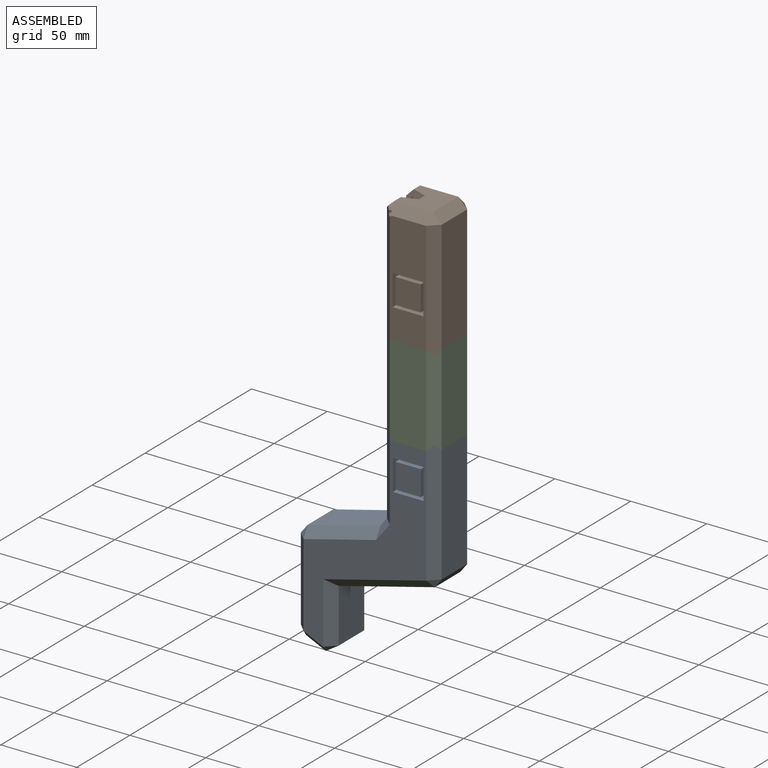
[diagram: assembled view]
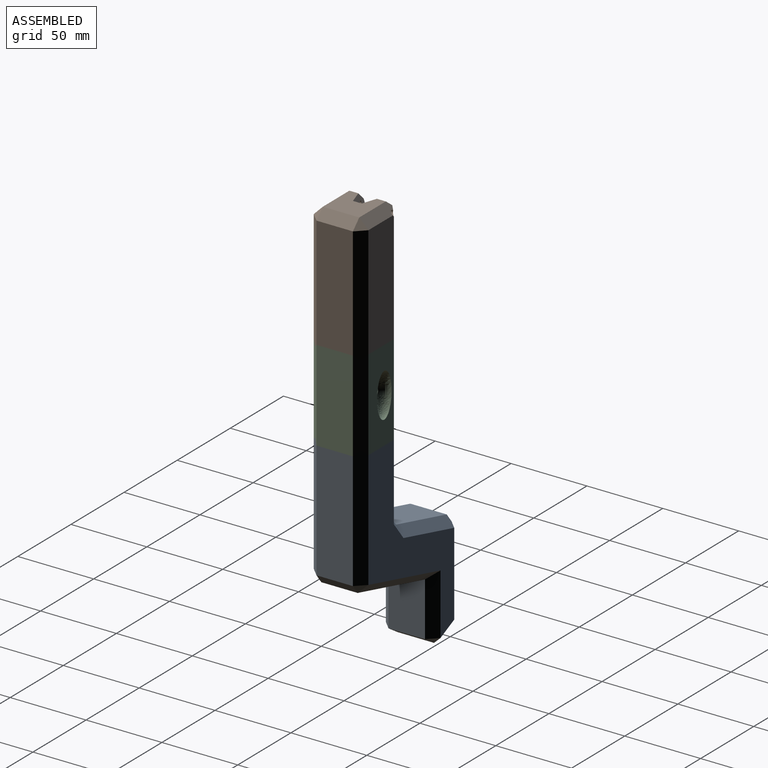
[diagram: assembled view, second angle]
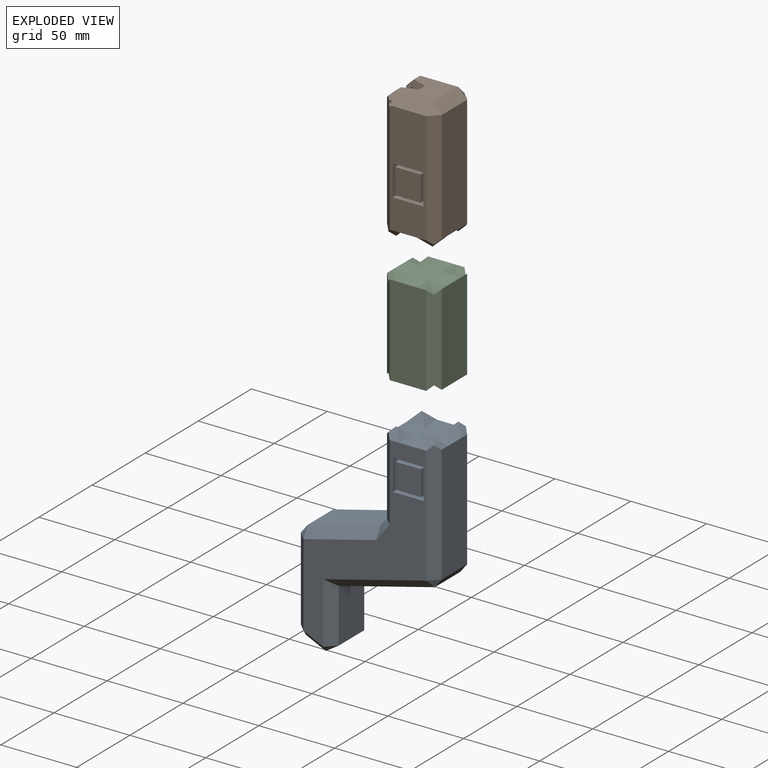
[diagram: exploded view]
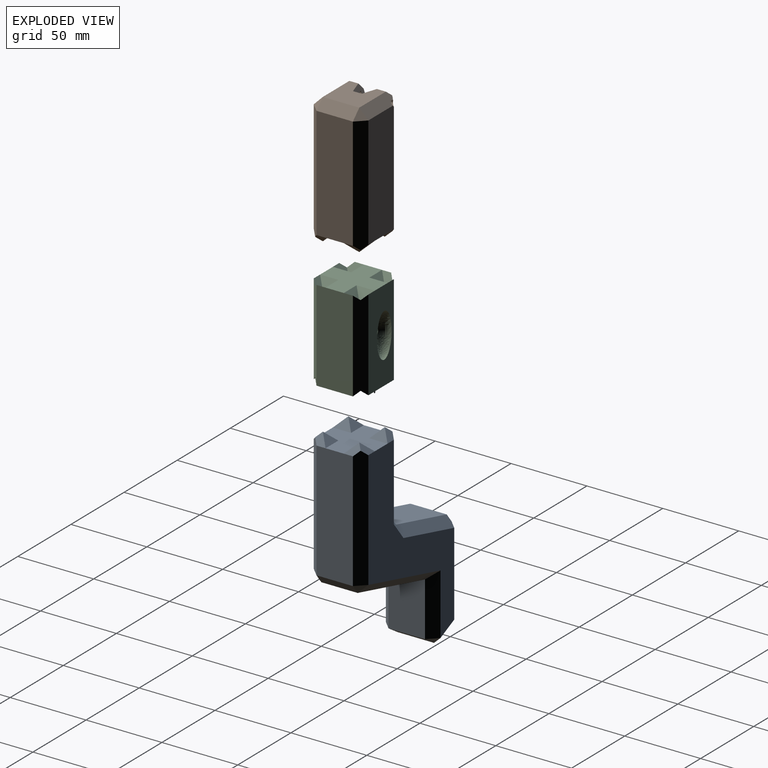
[diagram: exploded view, second angle]
ASSEMBLY  parts=3 mates=2
PART A: 65 faces, bbox 92.8x36x146.3 mm
  f0: plane 134.82x80.83mm, normal (0,-1,0), area 3369.8mm2, adj f1,f10,f11,f12,f17,f30,f35,f36
  f1: plane 36x36mm, normal (0,0,1), area 720mm2, adj f0,f2,f8,f9,f21,f22,f24,f27
  f2: plane 50.34x24mm, normal (-1,0,0), area 1208.1mm2, adj f1,f20,f29,f36,f37,f38
  f3: plane 47.8x24mm, normal (-0.25,0,0.97), area 1183.7mm2, adj f38,f41,f42,f43
  f4: plane 54.65x24mm, normal (-1,0,0), area 1311.5mm2, adj f43,f46,f47,f48
  f5: plane 24x13mm, normal (-0.42,0,-0.91), area 344mm2, adj f48,f51,f52,f53
  f6: plane 35.6x24mm, normal (1,0,0), area 854.4mm2, adj f7,f53,f56,f57
  f7: plane 63.32x24mm, normal (0.25,0,-0.97), area 1568.1mm2, adj f6,f58,f61,f64
  f8: plane 77.29x24mm, normal (1,0,0), area 1854.9mm2, adj f1,f25,f32,f59,f60,f64
  f9: plane 134.82x80.83mm, normal (0,1,0), area 3781.9mm2, adj f1,f23,f26,f37,f40,f42,f47,f52
  f10: plane 30x20.3mm, normal (0,0,-1), area 609mm2, adj f0,f11,f17,f18
  f11: plane 30x20.3mm, normal (1,0,0), area 609mm2, adj f0,f10,f12,f18
  f12: plane 30x20.3mm, normal (0,0,1), area 609mm2, adj f0,f11,f17,f18
  f13: plane 30x16.6mm, normal (0,0,1), area 498mm2, adj f14,f16,f18,f19
  f14: plane 30x16.6mm, normal (1,0,0), area 498mm2, adj f13,f15,f18,f19
  f15: plane 30x16.6mm, normal (0,0,-1), area 498mm2, adj f14,f16,f18,f19
  f16: plane 30x16.6mm, normal (-1,0,0), area 498mm2, adj f13,f15,f18,f19
  f17: plane 30x20.3mm, normal (-1,0,0), area 609mm2, adj f0,f10,f12,f18
  f18: plane 20.3x20.3mm, normal (0,-1,0), area 136.5mm2, adj f10,f11,f12,f13,f14,f15,f16,f17
  f19: plane 16.6x16.6mm, normal (0,-1,0), area 275.6mm2, adj f13,f14,f15,f16
  f20: plane 9x6mm, normal (-0.71,0,0.71), area 38.2mm2, adj f2,f21,f23,f37
  f21: plane 12x6mm, normal (0,-0.71,0.71), area 50.9mm2, adj f1,f20,f22
  f22: plane 12x6mm, normal (0.71,0,0.71), area 50.9mm2, adj f1,f21,f23
  f23: plane 9x6mm, normal (0,0.71,0.71), area 38.2mm2, adj f9,f20,f22,f37
  f24: plane 12x6mm, normal (0,-0.71,0.71), area 50.9mm2, adj f1,f25,f27
  f25: plane 9x6mm, normal (0.71,0,0.71), area 38.2mm2, adj f8,f24,f26,f60
  f26: plane 9x6mm, normal (0,0.71,0.71), area 38.2mm2, adj f9,f25,f27,f60
  f27: plane 12x6mm, normal (-0.71,0,0.71), area 50.9mm2, adj f1,f24,f26
  f28: plane 12x6mm, normal (0,0.71,0.71), area 50.9mm2, adj f1,f29,f31
  f29: plane 9x6mm, normal (-0.71,0,0.71), area 38.2mm2, adj f2,f28,f30,f36
  f30: plane 9x6mm, normal (0,-0.71,0.71), area 38.2mm2, adj f0,f29,f31,f36
  f31: plane 12x6mm, normal (0.71,0,0.71), area 50.9mm2, adj f1,f28,f30
  f32: plane 9x6mm, normal (0.71,0,0.71), area 38.2mm2, adj f8,f33,f35,f59
  f33: plane 12x6mm, normal (0,0.71,0.71), area 50.9mm2, adj f1,f32,f34
  f34: plane 12x6mm, normal (-0.71,0,0.71), area 50.9mm2, adj f1,f33,f35
  f35: plane 9x6mm, normal (0,-0.71,0.71), area 38.2mm2, adj f0,f32,f34,f59
  f36: plane 53.34x6mm, normal (-0.71,-0.71,0), area 439.8mm2, adj f0,f2,f29,f30,f39
  f37: plane 53.34x6mm, normal (-0.71,0.71,0), area 439.8mm2, adj f2,f9,f20,f23,f40
  f38: plane 24x5.81mm, normal (-0.79,0,0.61), area 176.7mm2, adj f2,f3,f39,f40
  f39: plane 11.63x10.52mm, normal (-0.62,-0.62,0.48), area 84.4mm2, adj f0,f36,f38,f41
  f40: plane 11.63x10.52mm, normal (-0.62,0.62,0.48), area 84.4mm2, adj f9,f37,f38,f42
  f41: plane 49.28x17.99mm, normal (-0.17,-0.71,0.69), area 418.5mm2, adj f0,f3,f39,f44
  f42: plane 49.28x17.99mm, normal (-0.17,0.71,0.69), area 418.5mm2, adj f3,f9,f40,f45
  f43: plane 24x5.81mm, normal (-0.79,0,0.61), area 176.7mm2, adj f3,f4,f44,f45
  f44: plane 6x6mm, normal (-0.62,-0.62,0.48), area 28.1mm2, adj f41,f43,f46
  f45: plane 6x6mm, normal (-0.62,0.62,0.48), area 28.1mm2, adj f42,f43,f47
  f46: plane 54.65x6mm, normal (-0.71,-0.71,0), area 463.7mm2, adj f0,f4,f44,f49
  f47: plane 54.65x6mm, normal (-0.71,0.71,0), area 463.7mm2, adj f4,f9,f45,f50
  f48: plane 24x5.44mm, normal (-0.84,0,-0.54), area 154.9mm2, adj f4,f5,f49,f50
  f49: plane 6x6mm, normal (-0.64,-0.64,-0.41), area 25.3mm2, adj f46,f48,f51
  f50: plane 6x6mm, normal (-0.64,0.64,-0.41), area 25.3mm2, adj f47,f48,f52
  f51: plane 15.53x11.48mm, normal (-0.3,-0.71,-0.64), area 121.6mm2, adj f0,f5,f49,f54
  f52: plane 15.53x11.48mm, normal (-0.3,0.71,-0.64), area 121.6mm2, adj f5,f9,f50,f55
  f53: plane 24x8.53mm, normal (0.54,0,-0.84), area 242.8mm2, adj f5,f6,f54,f55
  f54: plane 8.53x6mm, normal (0.47,-0.47,-0.74), area 34.5mm2, adj f51,f53,f56
  f55: plane 8.53x6mm, normal (0.47,0.47,-0.74), area 34.5mm2, adj f52,f53,f57
  f56: plane 40.26x6mm, normal (0.71,-0.71,0), area 321.8mm2, adj f0,f6,f54,f58
  f57: plane 40.26x6mm, normal (0.71,0.71,0), area 321.8mm2, adj f6,f9,f55,f61
  f58: plane 69.32x21.94mm, normal (0.17,-0.71,-0.69), area 574.2mm2, adj f0,f7,f56,f62
  f59: plane 80.29x6mm, normal (0.71,-0.71,0), area 668.5mm2, adj f0,f8,f32,f35,f62
  f60: plane 80.29x6mm, normal (0.71,0.71,0), area 668.5mm2, adj f8,f9,f25,f26,f63
  f61: plane 69.32x21.94mm, normal (0.17,0.71,-0.69), area 574.2mm2, adj f7,f9,f57,f63
  f62: plane 6x6mm, normal (0.62,-0.62,-0.48), area 28.1mm2, adj f58,f59,f64
  f63: plane 6x6mm, normal (0.62,0.62,-0.48), area 28.1mm2, adj f60,f61,f64
  f64: plane 24x5.81mm, normal (0.79,0,-0.61), area 176.7mm2, adj f7,f8,f62,f63
PART B: 49 faces, bbox 36x86x36 mm
  f0: plane 74x24mm, normal (0,0,1), area 1363.4mm2, adj f2,f8,f9,f10,f11,f18,f21,f37
  f1: plane 75x24mm, normal (-1,0,0), area 1712.7mm2, adj f2,f15,f28,f32,f33,f34,f38,f39
  f2: plane 36x36mm, normal (0,-1,0), area 720mm2, adj f0,f1,f3,f4,f16,f17,f19,f22
  f3: plane 74x24mm, normal (1,0,0), area 1776mm2, adj f2,f20,f23,f40,f43,f46
  f4: plane 74x24mm, normal (0,0,-1), area 1775.5mm2, adj f2,f26,f29,f36,f39,f42,f43
  f5: plane 35x16.7mm, normal (0,1,0), area 584.5mm2, adj f6,f12,f13,f14
  f6: plane 35x16.7mm, normal (1,0,0), area 584.5mm2, adj f5,f7,f13,f14
  f7: plane 35x16.7mm, normal (0,-1,0), area 584.5mm2, adj f6,f12,f13,f14
  f8: plane 35x20.3mm, normal (-1,0,0), area 710.5mm2, adj f0,f9,f11,f13
  f9: plane 35x20.3mm, normal (0,-1,0), area 710.5mm2, adj f0,f8,f10,f13
  f10: plane 35x20.3mm, normal (1,0,0), area 710.5mm2, adj f0,f9,f11,f13
  f11: plane 35x20.3mm, normal (0,1,0), area 710.5mm2, adj f0,f8,f10,f13
  f12: plane 35x16.7mm, normal (-1,0,0), area 584.5mm2, adj f5,f7,f13,f14
  f13: plane 20.3x20.3mm, normal (0,0,1), area 133.2mm2, adj f5,f6,f7,f8,f9,f10,f11,f12
  f14: plane 16.7x16.7mm, normal (0,0,1), area 278.9mm2, adj f5,f6,f7,f12
  f15: plane 9x6mm, normal (-0.71,-0.71,0), area 38.2mm2, adj f1,f16,f18,f38
  f16: plane 12x6mm, normal (0,-0.71,-0.71), area 50.9mm2, adj f2,f15,f17
  f17: plane 12x6mm, normal (0.71,-0.71,0), area 50.9mm2, adj f2,f16,f18
  f18: plane 9x6mm, normal (0,-0.71,0.71), area 38.2mm2, adj f0,f15,f17,f38
  f19: plane 12x6mm, normal (0,-0.71,-0.71), area 50.9mm2, adj f2,f20,f22
  f20: plane 9x6mm, normal (0.71,-0.71,0), area 38.2mm2, adj f3,f19,f21,f40
  f21: plane 9x6mm, normal (0,-0.71,0.71), area 38.2mm2, adj f0,f20,f22,f40
  f22: plane 12x6mm, normal (-0.71,-0.71,0), area 50.9mm2, adj f2,f19,f21
  f23: plane 9x6mm, normal (0.71,-0.71,0), area 38.2mm2, adj f3,f24,f26,f43
  f24: plane 12x6mm, normal (0,-0.71,0.71), area 50.9mm2, adj f2,f23,f25
  f25: plane 12x6mm, normal (-0.71,-0.71,0), area 50.9mm2, adj f2,f24,f26
  f26: plane 9x6mm, normal (0,-0.71,-0.71), area 38.2mm2, adj f4,f23,f25,f43
  f27: plane 12x6mm, normal (0,-0.71,0.71), area 50.9mm2, adj f2,f28,f30
  f28: plane 9x6mm, normal (-0.71,-0.71,0), area 38.2mm2, adj f1,f27,f29,f39
  f29: plane 9x6mm, normal (0,-0.71,-0.71), area 38.2mm2, adj f4,f28,f30,f39
  f30: plane 12x6mm, normal (0.71,-0.71,0), area 50.9mm2, adj f2,f27,f29
  f31: plane 25x24mm, normal (0,1,0), area 513.4mm2, adj f33,f34,f35,f41,f42,f46,f47,f48
  f32: plane 6.39x5.75mm, normal (0.34,0.94,0), area 19.5mm2, adj f1,f33,f34
  f33: plane 17.07x16.97mm, normal (-0.3,0.3,-0.91), area 219.7mm2, adj f1,f31,f32,f34,f35,f37,f47
  f34: plane 17.11x17.01mm, normal (-0.3,0.3,0.91), area 219.7mm2, adj f1,f31,f32,f33,f35,f36,f48
  f35: plane 6.49x5.84mm, normal (-0.94,-0.34,0), area 20.1mm2, adj f31,f33,f34
  f36: cylinder r=1.5mm len=14.6mm, axis (0,0,1), area 119.5mm2, adj f4,f34,f39,f42
  f37: cylinder r=1.5mm len=14.59mm, axis (0,0,1), area 119.4mm2, adj f0,f33,f38,f41
  f38: plane 80.5x6mm, normal (-0.71,0,0.71), area 652.6mm2, adj f0,f1,f15,f18,f37,f41,f47
  f39: plane 80.5x6mm, normal (-0.71,0,-0.71), area 652.6mm2, adj f1,f4,f28,f29,f36,f42,f48
  f40: plane 77x6mm, normal (0.71,0,0.71), area 640.6mm2, adj f0,f3,f20,f21,f44
  f41: plane 27.5x6mm, normal (0,0.71,0.71), area 215.7mm2, adj f0,f31,f37,f38,f44,f47
  f42: plane 27.5x6mm, normal (0,0.71,-0.71), area 215.7mm2, adj f4,f31,f36,f39,f45,f48
  f43: plane 77x6mm, normal (0.71,0,-0.71), area 640.6mm2, adj f3,f4,f23,f26,f45
  f44: plane 6x6mm, normal (0.58,0.58,0.58), area 31.2mm2, adj f40,f41,f46
  f45: plane 6x6mm, normal (0.58,0.58,-0.58), area 31.2mm2, adj f42,f43,f46
  f46: plane 24x6mm, normal (0.71,0.71,0), area 203.6mm2, adj f3,f31,f44,f45
  f47: plane 8.41x5mm, normal (-0.71,0.71,0), area 50.6mm2, adj f1,f31,f33,f38,f41
  f48: plane 8.42x5mm, normal (-0.71,0.71,0), area 50.7mm2, adj f1,f31,f34,f39,f42
PART C: 49 faces, bbox 36x60x36 mm
  f0: plane 36x36mm, normal (0,-1,0), area 720mm2, adj f2,f3,f4,f5,f28,f29,f31,f34
  f1: plane 36x36mm, normal (0,1,0), area 720mm2, adj f2,f3,f4,f5,f12,f13,f16,f17
  f2: plane 60x24mm, normal (0,0,1), area 1027.9mm2, adj f0,f1,f6,f7,f8,f9,f14,f25
  f3: plane 60x24mm, normal (1,0,0), area 1440mm2, adj f0,f1,f11,f20,f32,f35,f43,f46
  f4: plane 60x24mm, normal (-1,0,0), area 1126.9mm2, adj f0,f1,f15,f24,f27,f40,f44,f45
  f5: plane 60x24mm, normal (0,0,-1), area 1440mm2, adj f0,f1,f18,f21,f38,f41,f43,f44
  f6: plane 30x20.3mm, normal (-1,0,0), area 609mm2, adj f2,f7,f9,f10
  f7: plane 30x20.3mm, normal (0,-1,0), area 609mm2, adj f2,f6,f8,f10
  f8: plane 30x20.3mm, normal (1,0,0), area 580.7mm2, adj f2,f7,f9,f10,f47
  f9: plane 30x20.3mm, normal (0,1,0), area 609mm2, adj f2,f6,f8,f10
  f10: plane 20.3x20.3mm, normal (0,0,1), area 412.1mm2, adj f6,f7,f8,f9
  f11: plane 9x6mm, normal (-0.71,0.71,0), area 38.2mm2, adj f3,f12,f14,f46
  f12: plane 12x6mm, normal (0,0.71,0.71), area 50.9mm2, adj f1,f11,f13
  f13: plane 12x6mm, normal (0.71,0.71,0), area 50.9mm2, adj f1,f12,f14
  f14: plane 9x6mm, normal (0,0.71,-0.71), area 38.2mm2, adj f2,f11,f13,f46
  f15: plane 9x6mm, normal (0.71,0.71,0), area 38.2mm2, adj f4,f16,f18,f44
  f16: plane 12x6mm, normal (0,0.71,-0.71), area 50.9mm2, adj f1,f15,f17
  f17: plane 12x6mm, normal (-0.71,0.71,0), area 50.9mm2, adj f1,f16,f18
  f18: plane 9x6mm, normal (0,0.71,0.71), area 38.2mm2, adj f5,f15,f17,f44
  f19: plane 12x6mm, normal (0,0.71,-0.71), area 50.9mm2, adj f1,f20,f22
  f20: plane 9x6mm, normal (-0.71,0.71,0), area 38.2mm2, adj f3,f19,f21,f43
  f21: plane 9x6mm, normal (0,0.71,0.71), area 38.2mm2, adj f5,f20,f22,f43
  f22: plane 12x6mm, normal (0.71,0.71,0), area 50.9mm2, adj f1,f19,f21
  f23: plane 12x6mm, normal (0,0.71,0.71), area 50.9mm2, adj f1,f24,f26
  f24: plane 9x6mm, normal (0.71,0.71,0), area 38.2mm2, adj f4,f23,f25,f45
  f25: plane 9x6mm, normal (0,0.71,-0.71), area 38.2mm2, adj f2,f24,f26,f45
  f26: plane 12x6mm, normal (-0.71,0.71,0), area 50.9mm2, adj f1,f23,f25
  f27: plane 9x6mm, normal (0.71,-0.71,0), area 38.2mm2, adj f4,f28,f30,f45
  f28: plane 12x6mm, normal (0,-0.71,0.71), area 50.9mm2, adj f0,f27,f29
  f29: plane 12x6mm, normal (-0.71,-0.71,0), area 50.9mm2, adj f0,f28,f30
  f30: plane 9x6mm, normal (0,-0.71,-0.71), area 38.2mm2, adj f2,f27,f29,f45
  f31: plane 12x6mm, normal (0,-0.71,0.71), area 50.9mm2, adj f0,f32,f34
  f32: plane 9x6mm, normal (-0.71,-0.71,0), area 38.2mm2, adj f3,f31,f33,f46
  f33: plane 9x6mm, normal (0,-0.71,-0.71), area 38.2mm2, adj f2,f32,f34,f46
  f34: plane 12x6mm, normal (0.71,-0.71,0), area 50.9mm2, adj f0,f31,f33
  f35: plane 9x6mm, normal (-0.71,-0.71,0), area 38.2mm2, adj f3,f36,f38,f43
  f36: plane 12x6mm, normal (0,-0.71,-0.71), area 50.9mm2, adj f0,f35,f37
  f37: plane 12x6mm, normal (0.71,-0.71,0), area 50.9mm2, adj f0,f36,f38
  f38: plane 9x6mm, normal (0,-0.71,0.71), area 38.2mm2, adj f5,f35,f37,f43
  f39: plane 12x6mm, normal (0,-0.71,-0.71), area 50.9mm2, adj f0,f40,f42
  f40: plane 9x6mm, normal (0.71,-0.71,0), area 38.2mm2, adj f4,f39,f41,f44
  f41: plane 9x6mm, normal (0,-0.71,0.71), area 38.2mm2, adj f5,f40,f42,f44
  f42: plane 12x6mm, normal (-0.71,-0.71,0), area 50.9mm2, adj f0,f39,f41
  f43: plane 60x6mm, normal (0.71,0,-0.71), area 483.7mm2, adj f3,f5,f20,f21,f35,f38
  f44: plane 60x6mm, normal (-0.71,0,-0.71), area 483.7mm2, adj f4,f5,f15,f18,f40,f41
  f45: plane 60x6mm, normal (-0.71,0,0.71), area 483.7mm2, adj f2,f4,f24,f25,f27,f30
  f46: plane 60x6mm, normal (0.71,0,0.71), area 483.7mm2, adj f2,f3,f11,f14,f32,f33
  f47: cylinder r=3mm len=6mm, axis (-1,0,0), area 26.5mm2, adj f8,f48
  f48: revolved ~29.05x13.72mm, area 502.1mm2, adj f4,f47
PLACE A t=(-29.6,-15.48,-7.57)mm
PLACE B rot(axis=(1,0,0),90deg) t=(-13.07,-15.48,176.05)mm
PLACE C rot(axis=(0.58,-0.58,-0.58),120deg) t=(-17.66,-59.39,108.96)mm
MATE planar B.f2 <-> C.f1  axis (0,0,-1) through (-35.66,-33.48,134.38)mm
MATE planar C.f0 <-> A.f1  axis (0,0,-1) through (-35.66,-33.48,74.38)mm
